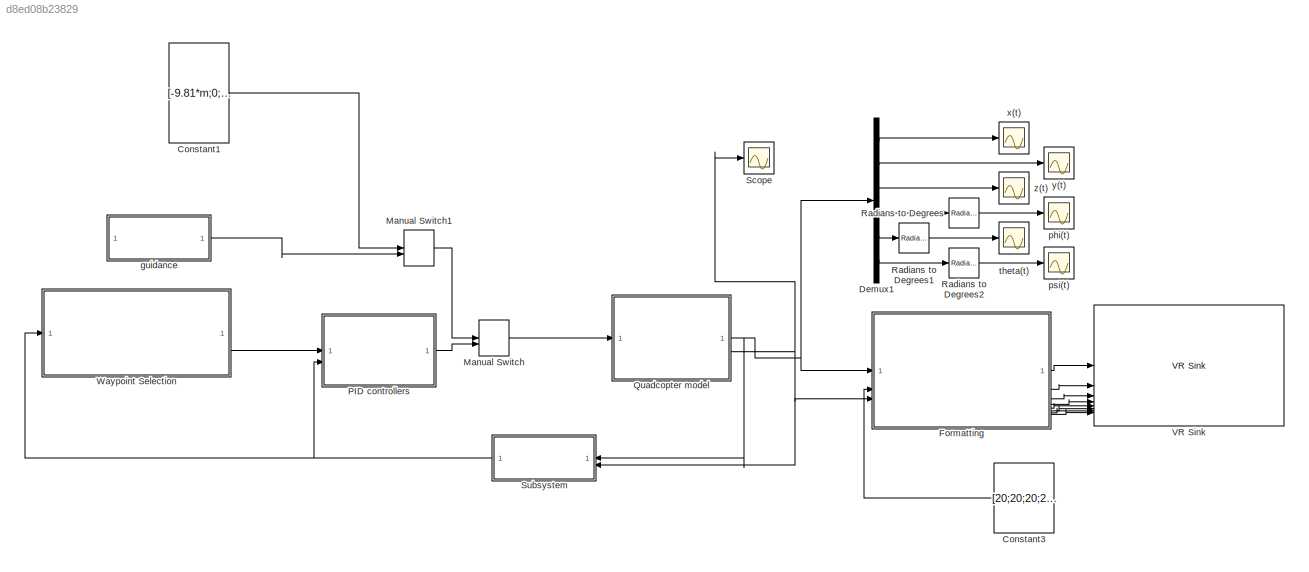
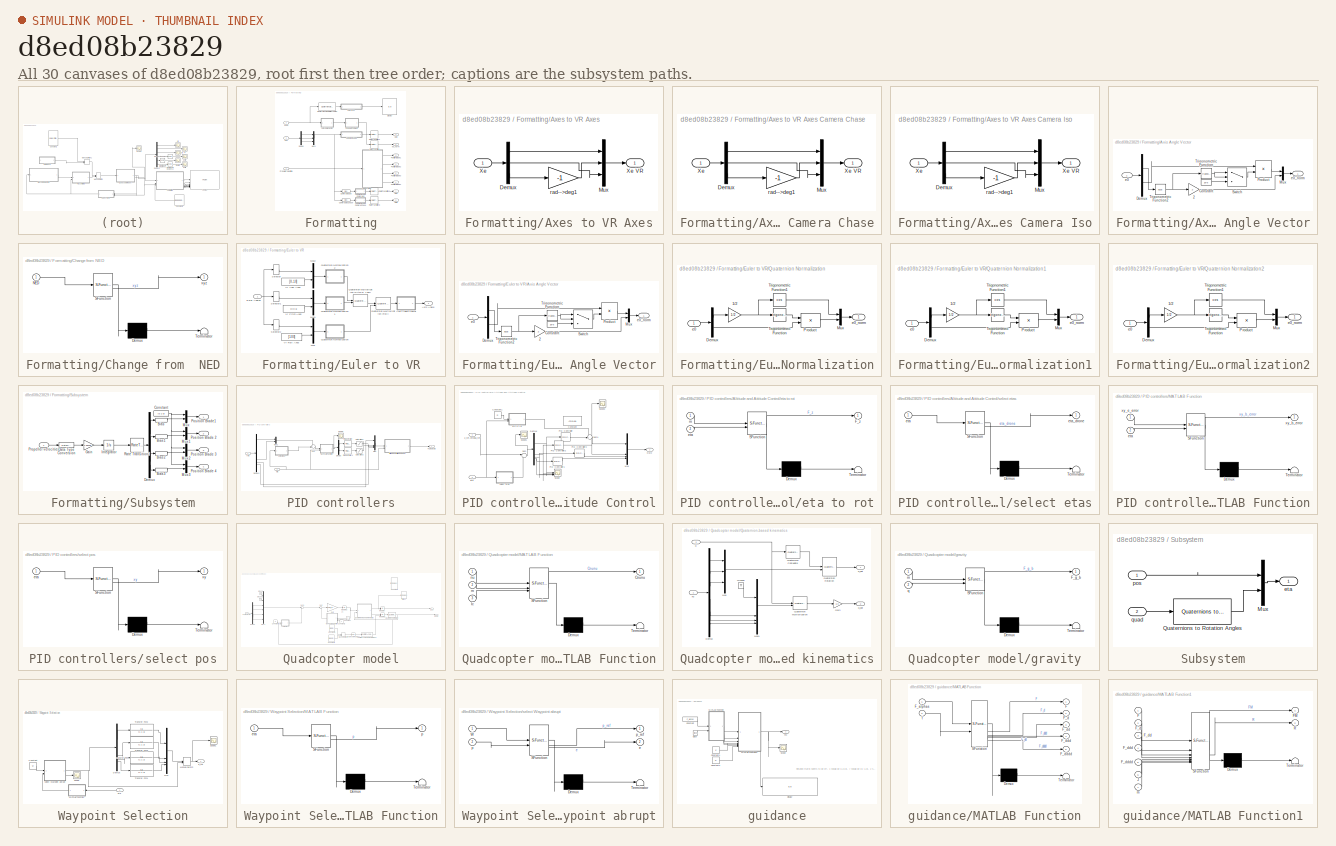
[diagram: thumbnail index - all 30 canvases of the model, root first then tree order]
MODEL slx_d8ed08b23829
KIND model
CONFIG AbsTol = auto
CONFIG EnableMultiTasking = on
CONFIG FixedStep = 0.005
CONFIG MaxStep = auto
CONFIG MinStep = auto
CONFIG RelTol = 1e-3
CONFIG SampleTimeConstraint = Unconstrained
CONFIG SolverName = ode3
CONFIG StartTime = 0
CONFIG StopTime = 10
BLOCK [Constant] Constant1
  Value = [-9.81*m;0;0;0]
  VectorParams1D = off
BLOCK [Constant] Constant3
  Value = [20;20;20;20]
  VectorParams1D = off
BLOCK [Demux] Demux1
  Commented = on
  Outputs = 6
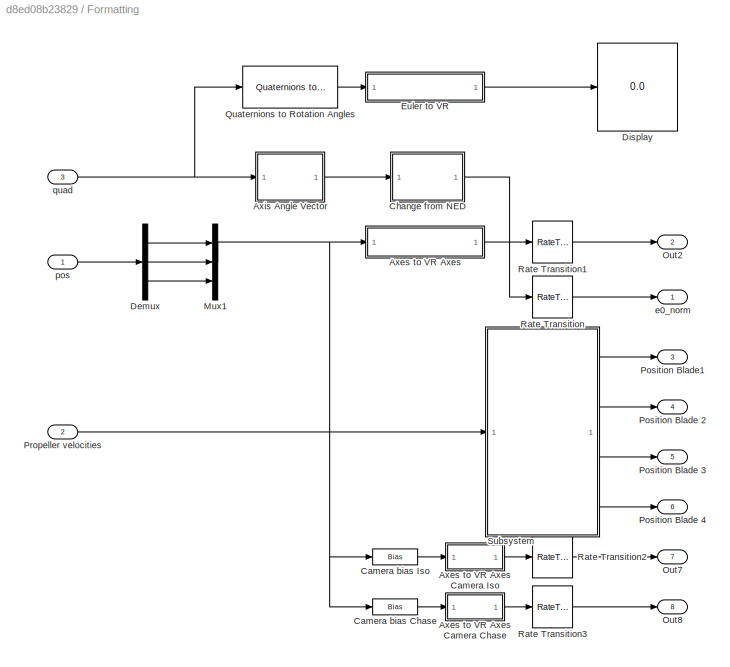
BLOCK [SubSystem] Formatting
BLOCK [SubSystem] Formatting/Axes to VR Axes
BLOCK [SubSystem] Formatting/Axes to VR Axes Camera Chase
BLOCK [Demux] Formatting/Axes to VR Axes Camera Chase/Demux
  DisplayOption = none
  Outputs = 3
BLOCK [Mux] Formatting/Axes to VR Axes Camera Chase/Mux
  DisplayOption = bar
  Inputs = 3
BLOCK [Inport] Formatting/Axes to VR Axes Camera Chase/Xe
BLOCK [Outport] Formatting/Axes to VR Axes Camera Chase/Xe VR
  VectorParamsAs1DForOutWhenUnconnected = off
BLOCK [Gain] Formatting/Axes to VR Axes Camera Chase/rad-->deg1
  Gain = -1
  NameLocation = top
  OutDataTypeStr = Inherit: Same as input
  ParamDataTypeStr = Inherit: Same as input
  SaturateOnIntegerOverflow = on
BLOCK [SubSystem] Formatting/Axes to VR Axes Camera Iso
BLOCK [Demux] Formatting/Axes to VR Axes Camera Iso/Demux
  DisplayOption = none
  Outputs = 3
BLOCK [Mux] Formatting/Axes to VR Axes Camera Iso/Mux
  DisplayOption = bar
  Inputs = 3
BLOCK [Inport] Formatting/Axes to VR Axes Camera Iso/Xe
BLOCK [Outport] Formatting/Axes to VR Axes Camera Iso/Xe VR
  VectorParamsAs1DForOutWhenUnconnected = off
BLOCK [Gain] Formatting/Axes to VR Axes Camera Iso/rad-->deg1
  Gain = -1
  NameLocation = top
  OutDataTypeStr = Inherit: Same as input
  ParamDataTypeStr = Inherit: Same as input
  SaturateOnIntegerOverflow = on
BLOCK [Demux] Formatting/Axes to VR Axes/Demux
  DisplayOption = none
  Outputs = 3
BLOCK [Mux] Formatting/Axes to VR Axes/Mux
  DisplayOption = bar
  Inputs = 3
BLOCK [Inport] Formatting/Axes to VR Axes/Xe
BLOCK [Outport] Formatting/Axes to VR Axes/Xe VR
  VectorParamsAs1DForOutWhenUnconnected = off
BLOCK [Gain] Formatting/Axes to VR Axes/rad-->deg1
  Gain = -1
  NameLocation = top
  OutDataTypeStr = Inherit: Same as input
  ParamDataTypeStr = Inherit: Same as input
  SaturateOnIntegerOverflow = on
BLOCK [SubSystem] Formatting/Axis Angle Vector
BLOCK [Gain] Formatting/Axis Angle Vector/2
  Gain = 2
  OutDataTypeStr = Inherit: Same as input
  ParamDataTypeStr = Inherit: Same as input
  SaturateOnIntegerOverflow = on
BLOCK [Constant] Formatting/Axis Angle Vector/Constant
  Value = 1e-6
BLOCK [Demux] Formatting/Axis Angle Vector/Demux
  DisplayOption = none
  Outputs = [1 3 ]
BLOCK [Mux] Formatting/Axis Angle Vector/Mux
  DisplayOption = bar
  Inputs = 2
BLOCK [Product] Formatting/Axis Angle Vector/Product
  InputSameDT = on
  Inputs = */
  OutDataTypeStr = Inherit: Same as first input
  SaturateOnIntegerOverflow = on
BLOCK [Switch] Formatting/Axis Angle Vector/Switch
  Criteria = u2 ~= 0
  InputSameDT = off
  SaturateOnIntegerOverflow = off
BLOCK [Trigonometry] Formatting/Axis Angle Vector/Trigonometric Function
BLOCK [Trigonometry] Formatting/Axis Angle Vector/Trigonometric Function2
  Operator = acos
BLOCK [Inport] Formatting/Axis Angle Vector/e0
BLOCK [Outport] Formatting/Axis Angle Vector/e0_norm
  VectorParamsAs1DForOutWhenUnconnected = off
BLOCK [Bias] Formatting/Camera bias Chase
  Bias = [-4 0 -.9558]'
  SaturateOnIntegerOverflow = off
BLOCK [Bias] Formatting/Camera bias Iso
  Bias = [0.9009 .99 -.6247]'
  SaturateOnIntegerOverflow = off
BLOCK [SubSystem] Formatting/Change from  NED
  ErrorFcn = Stateflow.Translate.translate
  PermitHierarchicalResolution = ExplicitOnly
  SFBlockType = MATLAB Function
  TreatAsAtomicUnit = on
BLOCK [Demux] Formatting/Change from  NED/ Demux 
  Outputs = 1
BLOCK [S-Function] Formatting/Change from  NED/ SFunction 
  EnableBusSupport = on
  FunctionName = sf_sfun
  PortCounts = [1 2]
  SFcnIsStateOwnerBlock = off
  SFunctionDeploymentMode = off
  Tag = Stateflow S-Function 1
BLOCK [Terminator] Formatting/Change from  NED/ Terminator 
BLOCK [Inport] Formatting/Change from  NED/NED
BLOCK [Outport] Formatting/Change from  NED/xyz
BLOCK [Demux] Formatting/Demux
  Outputs = 3
BLOCK [Display] Formatting/Display
  Decimation = 1
BLOCK [SubSystem] Formatting/Euler to VR
BLOCK [Outport] Formatting/Euler to VR/Axis Angle
  VectorParamsAs1DForOutWhenUnconnected = off
BLOCK [SubSystem] Formatting/Euler to VR/Axis Angle Vector
BLOCK [Gain] Formatting/Euler to VR/Axis Angle Vector/2
  Gain = 2
  OutDataTypeStr = Inherit: Same as input
  ParamDataTypeStr = Inherit: Same as input
  SaturateOnIntegerOverflow = on
BLOCK [Constant] Formatting/Euler to VR/Axis Angle Vector/Constant
  Value = 1e-6
BLOCK [Demux] Formatting/Euler to VR/Axis Angle Vector/Demux
  DisplayOption = none
  Outputs = [1 3 ]
BLOCK [Mux] Formatting/Euler to VR/Axis Angle Vector/Mux
  DisplayOption = bar
  Inputs = 2
BLOCK [Product] Formatting/Euler to VR/Axis Angle Vector/Product
  InputSameDT = on
  Inputs = */
  OutDataTypeStr = Inherit: Same as first input
  SaturateOnIntegerOverflow = on
BLOCK [Switch] Formatting/Euler to VR/Axis Angle Vector/Switch
  Criteria = u2 ~= 0
  InputSameDT = off
  SaturateOnIntegerOverflow = off
BLOCK [Trigonometry] Formatting/Euler to VR/Axis Angle Vector/Trigonometric Function
BLOCK [Trigonometry] Formatting/Euler to VR/Axis Angle Vector/Trigonometric Function2
  Operator = acos
BLOCK [Inport] Formatting/Euler to VR/Axis Angle Vector/e0
BLOCK [Outport] Formatting/Euler to VR/Axis Angle Vector/e0_norm
  VectorParamsAs1DForOutWhenUnconnected = off
BLOCK [Inport] Formatting/Euler to VR/Euler Angles
BLOCK [Mux] Formatting/Euler to VR/Mux
  DisplayOption = bar
  Inputs = 2
BLOCK [Mux] Formatting/Euler to VR/Mux1
  DisplayOption = bar
  Inputs = 2
BLOCK [Mux] Formatting/Euler to VR/Mux2
  DisplayOption = bar
  Inputs = 2
BLOCK [Reference] Formatting/Euler to VR/Quaternion Multiplication (Pitch & Yaw)  REF=aerolibutil/Quaternion
Multiplication
  SourceBlock = aerolibutil/Quaternion\nMultiplication
  SourceType = Quaternion Multiplication
BLOCK [Reference] Formatting/Euler to VR/Quaternion Multiplication (Roll)  REF=aerolibutil/Quaternion
Multiplication
  SourceBlock = aerolibutil/Quaternion\nMultiplication
  SourceType = Quaternion Multiplication
BLOCK [SubSystem] Formatting/Euler to VR/Quaternion Normalization
BLOCK [Gain] Formatting/Euler to VR/Quaternion Normalization/1//2
  Gain = 1/2
  OutDataTypeStr = Inherit: Same as input
  ParamDataTypeStr = Inherit: Same as input
  SaturateOnIntegerOverflow = on
BLOCK [Demux] Formatting/Euler to VR/Quaternion Normalization/Demux
  DisplayOption = none
  Outputs = [1 3]
BLOCK [Mux] Formatting/Euler to VR/Quaternion Normalization/Mux
  DisplayOption = bar
  Inputs = 2
BLOCK [Product] Formatting/Euler to VR/Quaternion Normalization/Product
  InputSameDT = on
  OutDataTypeStr = Inherit: Same as first input
  SaturateOnIntegerOverflow = on
BLOCK [Trigonometry] Formatting/Euler to VR/Quaternion Normalization/Trigonometric Function
BLOCK [Trigonometry] Formatting/Euler to VR/Quaternion Normalization/Trigonometric Function1
  Operator = cos
BLOCK [Inport] Formatting/Euler to VR/Quaternion Normalization/e0
BLOCK [Outport] Formatting/Euler to VR/Quaternion Normalization/e0_norm
  VectorParamsAs1DForOutWhenUnconnected = off
BLOCK [SubSystem] Formatting/Euler to VR/Quaternion Normalization1
BLOCK [Gain] Formatting/Euler to VR/Quaternion Normalization1/1//2
  Gain = 1/2
  OutDataTypeStr = Inherit: Same as input
  ParamDataTypeStr = Inherit: Same as input
  SaturateOnIntegerOverflow = on
BLOCK [Demux] Formatting/Euler to VR/Quaternion Normalization1/Demux
  DisplayOption = none
  Outputs = [1 3]
BLOCK [Mux] Formatting/Euler to VR/Quaternion Normalization1/Mux
  DisplayOption = bar
  Inputs = 2
BLOCK [Product] Formatting/Euler to VR/Quaternion Normalization1/Product
  InputSameDT = on
  OutDataTypeStr = Inherit: Same as first input
  SaturateOnIntegerOverflow = on
BLOCK [Trigonometry] Formatting/Euler to VR/Quaternion Normalization1/Trigonometric Function
BLOCK [Trigonometry] Formatting/Euler to VR/Quaternion Normalization1/Trigonometric Function1
  Operator = cos
BLOCK [Inport] Formatting/Euler to VR/Quaternion Normalization1/e0
BLOCK [Outport] Formatting/Euler to VR/Quaternion Normalization1/e0_norm
  VectorParamsAs1DForOutWhenUnconnected = off
BLOCK [SubSystem] Formatting/Euler to VR/Quaternion Normalization2
BLOCK [Gain] Formatting/Euler to VR/Quaternion Normalization2/1//2
  Gain = 1/2
  OutDataTypeStr = Inherit: Same as input
  ParamDataTypeStr = Inherit: Same as input
  SaturateOnIntegerOverflow = on
BLOCK [Demux] Formatting/Euler to VR/Quaternion Normalization2/Demux
  DisplayOption = none
  Outputs = [1 3]
BLOCK [Mux] Formatting/Euler to VR/Quaternion Normalization2/Mux
  DisplayOption = bar
  Inputs = 2
BLOCK [Product] Formatting/Euler to VR/Quaternion Normalization2/Product
  InputSameDT = on
  OutDataTypeStr = Inherit: Same as first input
  SaturateOnIntegerOverflow = on
BLOCK [Trigonometry] Formatting/Euler to VR/Quaternion Normalization2/Trigonometric Function
BLOCK [Trigonometry] Formatting/Euler to VR/Quaternion Normalization2/Trigonometric Function1
  Operator = cos
BLOCK [Inport] Formatting/Euler to VR/Quaternion Normalization2/e0
BLOCK [Outport] Formatting/Euler to VR/Quaternion Normalization2/e0_norm
  VectorParamsAs1DForOutWhenUnconnected = off
BLOCK [Selector] Formatting/Euler to VR/Selector
  IndexOptions = Index vector (dialog)
  Indices = [3]
  InputPortWidth = 3
  OutputSizes = 1
BLOCK [Selector] Formatting/Euler to VR/Selector1
  IndexOptions = Index vector (dialog)
  Indices = [2]
  InputPortWidth = 3
  OutputSizes = 1
BLOCK [Selector] Formatting/Euler to VR/Selector2
  IndexOptions = Index vector (dialog)
  Indices = [1]
  InputPortWidth = 3
  OutputSizes = 1
BLOCK [Constant] Formatting/Euler to VR/Vr Pitch Axes
  NameLocation = top
  Value = [0 0 1]
BLOCK [Constant] Formatting/Euler to VR/Vr Roll Axes
  NameLocation = top
  Value = [1 0 0]
BLOCK [Constant] Formatting/Euler to VR/Vr Yaw Axes
  Value = [0 -1 0]
BLOCK [Mux] Formatting/Mux1
  DisplayOption = bar
  Inputs = 3
BLOCK [Outport] Formatting/Out2
  Port = 2
BLOCK [Outport] Formatting/Out7
  Port = 7
BLOCK [Outport] Formatting/Out8
  Port = 8
BLOCK [Outport] Formatting/Position Blade 2
  Port = 4
BLOCK [Outport] Formatting/Position Blade 3
  Port = 5
BLOCK [Outport] Formatting/Position Blade 4
  Port = 6
BLOCK [Outport] Formatting/Position Blade1
  Port = 3
BLOCK [Inport] Formatting/Propeller velocities
  Port = 2
BLOCK [Reference] Formatting/Quaternions to Rotation Angles  REF=sharedtransform/Quaternions to Rotation Angles
  AttributesFormatString = Rotation Order: %<rotationOrder>
  LibrarySourceBlock = aerolibtransform2/Quaternions to Rotation Angles
  SourceBlock = sharedtransform/Quaternions to Rotation Angles
  SourceType = Quat2Ang
BLOCK [RateTransition] Formatting/Rate Transition
BLOCK [RateTransition] Formatting/Rate Transition1
BLOCK [RateTransition] Formatting/Rate Transition2
BLOCK [RateTransition] Formatting/Rate Transition3
BLOCK [SubSystem] Formatting/Subsystem
BLOCK [Bias] Formatting/Subsystem/Bias
  Bias = .1
  SaturateOnIntegerOverflow = off
BLOCK [Bias] Formatting/Subsystem/Bias1
  Bias = -.3
  SaturateOnIntegerOverflow = off
BLOCK [Bias] Formatting/Subsystem/Bias2
  Bias = .5
  SaturateOnIntegerOverflow = off
BLOCK [Bias] Formatting/Subsystem/Bias3
  Bias = .7
  SaturateOnIntegerOverflow = off
BLOCK [Constant] Formatting/Subsystem/Constant
  Value = [0 1 0]
BLOCK [DataTypeConversion] Formatting/Subsystem/Data Type Conversion
  OutDataTypeStr = double
  RndMeth = Floor
  SaturateOnIntegerOverflow = off
BLOCK [Demux] Formatting/Subsystem/Demux
BLOCK [Gain] Formatting/Subsystem/Gain
  Gain = 1.38408
BLOCK [Integrator] Formatting/Subsystem/Integrator
  InitialCondition = [.1 ; .2 ;-.3 ;-.4]
  WrapState = on
  WrappedStateLowerValue = -2*pi
  WrappedStateUpperValue = 2*pi
BLOCK [Mux] Formatting/Subsystem/Mux
  DisplayOption = bar
  Inputs = 2
BLOCK [Mux] Formatting/Subsystem/Mux1
  DisplayOption = bar
  Inputs = 2
BLOCK [Mux] Formatting/Subsystem/Mux2
  DisplayOption = bar
  Inputs = 2
BLOCK [Mux] Formatting/Subsystem/Mux3
  DisplayOption = bar
  Inputs = 2
BLOCK [Outport] Formatting/Subsystem/Position Blade 2
  Port = 2
  VectorParamsAs1DForOutWhenUnconnected = off
BLOCK [Outport] Formatting/Subsystem/Position Blade 3
  Port = 3
  VectorParamsAs1DForOutWhenUnconnected = off
BLOCK [Outport] Formatting/Subsystem/Position Blade 4
  Port = 4
  VectorParamsAs1DForOutWhenUnconnected = off
BLOCK [Outport] Formatting/Subsystem/Position Blade1
  VectorParamsAs1DForOutWhenUnconnected = off
BLOCK [Inport] Formatting/Subsystem/Propeller velocities
BLOCK [RateTransition] Formatting/Subsystem/Rate Transition2
BLOCK [Outport] Formatting/e0_norm
BLOCK [Inport] Formatting/pos
BLOCK [Inport] Formatting/quad
  Port = 3
BLOCK [ManualSwitch] Manual Switch
BLOCK [ManualSwitch] Manual Switch1
  CurrentSetting = 0
BLOCK [SubSystem] PID controllers
BLOCK [SubSystem] PID controllers/Altitude and Attitude Control
BLOCK [Constant] PID controllers/Altitude and Attitude Control/Constant
  Value = -m*9.81
BLOCK [Constant] PID controllers/Altitude and Attitude Control/Constant1
  Value = m
BLOCK [Demux] PID controllers/Altitude and Attitude Control/Demux
BLOCK [Mux] PID controllers/Altitude and Attitude Control/Mux
  DisplayOption = bar
BLOCK [Outport] PID controllers/Altitude and Attitude Control/Out2
BLOCK [Reference] PID controllers/Altitude and Attitude Control/PID Controller  REF=slpidlib/PID Controller
  LibrarySourceBlock = simulink/Continuous/PID Controller
  SourceBlock = slpidlib/PID Controller
  SourceType = PID 1dof
BLOCK [Reference] PID controllers/Altitude and Attitude Control/PID Controller1  REF=slpidlib/PID Controller
  LibrarySourceBlock = simulink/Continuous/PID Controller
  SourceBlock = slpidlib/PID Controller
  SourceType = PID 1dof
BLOCK [Reference] PID controllers/Altitude and Attitude Control/PID Controller2  REF=slpidlib/PID Controller
  LibrarySourceBlock = simulink/Continuous/PID Controller
  SourceBlock = slpidlib/PID Controller
  SourceType = PID 1dof
BLOCK [Reference] PID controllers/Altitude and Attitude Control/PID Controller3  REF=slpidlib/PID Controller
  LibrarySourceBlock = simulink/Continuous/PID Controller
  SourceBlock = slpidlib/PID Controller
  SourceType = PID 1dof
BLOCK [Scope] PID controllers/Altitude and Attitude Control/Scope
  Floating = off
  NumInputPorts = 4
  ScopeSpecificationString = Simulink.scopes.TimeScopeBlockCfg('CurrentConfiguration', extmgr.ConfigurationSet(extmgr.Configuration('Core','General UI',true),extmgr.Configuration('Core','Source UI',true),extmgr.Configuration('Sources','WiredSimulink',true,'DataLoggingVariableName','ScopeData1'),extmgr.Configuration('Visuals','Time Domain',true,'SerializedDisplays',{struct('MinYLimReal','-0.00819','MaxYLimReal','0.0203','YLabe...<+1560ch>
BLOCK [Scope] PID controllers/Altitude and Attitude Control/Scope1
  Floating = off
  NumInputPorts = 1
  ScopeSpecificationString = Simulink.scopes.TimeScopeBlockCfg('CurrentConfiguration', extmgr.ConfigurationSet(extmgr.Configuration('Core','General UI',true),extmgr.Configuration('Core','Source UI',true),extmgr.Configuration('Sources','WiredSimulink',true,'DataLoggingVariableName','ScopeData2'),extmgr.Configuration('Visuals','Time Domain',true,'SerializedDisplays',{struct('MinYLimReal','-0.98175','MaxYLimReal','0.98175','YLab...<+1558ch>
BLOCK [Scope] PID controllers/Altitude and Attitude Control/Scope2
  Floating = off
  NumInputPorts = 1
  ScopeSpecificationString = Simulink.scopes.TimeScopeBlockCfg('CurrentConfiguration', extmgr.ConfigurationSet(extmgr.Configuration('Core','General UI',true),extmgr.Configuration('Core','Source UI',true),extmgr.Configuration('Sources','WiredSimulink',true,'DataLoggingVariableName','ScopeData1'),extmgr.Configuration('Visuals','Time Domain',true,'SerializedDisplays',{struct('MinYLimReal','-1126.94787','MaxYLimReal','976.61764',...<+1539ch>
BLOCK [Sum] PID controllers/Altitude and Attitude Control/Sum
  Inputs = |+-
BLOCK [Sum] PID controllers/Altitude and Attitude Control/Sum1
  Inputs = -+|
BLOCK [Inport] PID controllers/Altitude and Attitude Control/eta
  Port = 2
BLOCK [SubSystem] PID controllers/Altitude and Attitude Control/eta to rot
  ErrorFcn = Stateflow.Translate.translate
  PermitHierarchicalResolution = ExplicitOnly
  SFBlockType = MATLAB Function
  TreatAsAtomicUnit = on
BLOCK [Demux] PID controllers/Altitude and Attitude Control/eta to rot/ Demux 
  Outputs = 1
BLOCK [S-Function] PID controllers/Altitude and Attitude Control/eta to rot/ SFunction 
  EnableBusSupport = on
  FunctionName = sf_sfun
  PortCounts = [2 2]
  SFcnIsStateOwnerBlock = off
  SFunctionDeploymentMode = off
  Tag = Stateflow S-Function 5
BLOCK [Terminator] PID controllers/Altitude and Attitude Control/eta to rot/ Terminator 
BLOCK [Outport] PID controllers/Altitude and Attitude Control/eta to rot/F_z
BLOCK [Inport] PID controllers/Altitude and Attitude Control/eta to rot/eta
  Port = 2
BLOCK [Inport] PID controllers/Altitude and Attitude Control/eta to rot/m
BLOCK [SubSystem] PID controllers/Altitude and Attitude Control/select etas
  ErrorFcn = Stateflow.Translate.translate
  PermitHierarchicalResolution = ExplicitOnly
  SFBlockType = MATLAB Function
  TreatAsAtomicUnit = on
BLOCK [Demux] PID controllers/Altitude and Attitude Control/select etas/ Demux 
  Outputs = 1
BLOCK [S-Function] PID controllers/Altitude and Attitude Control/select etas/ SFunction 
  EnableBusSupport = on
  FunctionName = sf_sfun
  PortCounts = [1 2]
  SFcnIsStateOwnerBlock = off
  SFunctionDeploymentMode = off
  Tag = Stateflow S-Function 3
BLOCK [Terminator] PID controllers/Altitude and Attitude Control/select etas/ Terminator 
BLOCK [Inport] PID controllers/Altitude and Attitude Control/select etas/eta
BLOCK [Outport] PID controllers/Altitude and Attitude Control/select etas/eta_drone
BLOCK [Inport] PID controllers/Altitude and Attitude Control/z_ref,omega_ref
BLOCK [Demux] PID controllers/Demux
  Outputs = 2
BLOCK [Demux] PID controllers/Demux1
BLOCK [Outport] PID controllers/Fz,mx,my,mz
BLOCK [SubSystem] PID controllers/MATLAB Function
  ErrorFcn = Stateflow.Translate.translate
  PermitHierarchicalResolution = ExplicitOnly
  SFBlockType = MATLAB Function
  TreatAsAtomicUnit = on
BLOCK [Demux] PID controllers/MATLAB Function/ Demux 
  Outputs = 1
BLOCK [S-Function] PID controllers/MATLAB Function/ SFunction 
  EnableBusSupport = on
  FunctionName = sf_sfun
  PortCounts = [2 2]
  SFcnIsStateOwnerBlock = off
  SFunctionDeploymentMode = off
  Tag = Stateflow S-Function 7
BLOCK [Terminator] PID controllers/MATLAB Function/ Terminator 
BLOCK [Inport] PID controllers/MATLAB Function/eta
  Port = 2
BLOCK [Outport] PID controllers/MATLAB Function/xy_b_error
BLOCK [Inport] PID controllers/MATLAB Function/xy_e_error
BLOCK [Mux] PID controllers/Mux
  DisplayOption = bar
BLOCK [Mux] PID controllers/Mux1
  DisplayOption = bar
  Inputs = 2
BLOCK [Reference] PID controllers/PID Controller  REF=slpidlib/PID Controller
  LibrarySourceBlock = simulink/Continuous/PID Controller
  SourceBlock = slpidlib/PID Controller
  SourceType = PID 1dof
BLOCK [Reference] PID controllers/PID Controller1  REF=slpidlib/PID Controller
  LibrarySourceBlock = simulink/Continuous/PID Controller
  SourceBlock = slpidlib/PID Controller
  SourceType = PID 1dof
BLOCK [Saturate] PID controllers/Saturation1
  LowerLimit = -45/180*pi
  UpperLimit = 45/180*pi
BLOCK [Saturate] PID controllers/Saturation2
  LowerLimit = -45/180*pi
  UpperLimit = 45/180*pi
BLOCK [Scope] PID controllers/Scope
  Floating = off
  NumInputPorts = 1
  ScopeSpecificationString = Simulink.scopes.TimeScopeBlockCfg('CurrentConfiguration', extmgr.ConfigurationSet(extmgr.Configuration('Core','General UI',true),extmgr.Configuration('Core','Source UI',true),extmgr.Configuration('Sources','WiredSimulink',true,'DataLoggingVariableName','ScopeData1'),extmgr.Configuration('Visuals','Time Domain',true,'SerializedDisplays',{struct('MinYLimReal','-16.00098','MaxYLimReal','5.17223','YLa...<+1562ch>
BLOCK [Sum] PID controllers/Sum
  Inputs = -+|
BLOCK [Inport] PID controllers/eta
  Port = 2
BLOCK [Inport] PID controllers/refs
BLOCK [SubSystem] PID controllers/select pos
  ErrorFcn = Stateflow.Translate.translate
  PermitHierarchicalResolution = ExplicitOnly
  SFBlockType = MATLAB Function
  TreatAsAtomicUnit = on
BLOCK [Demux] PID controllers/select pos/ Demux 
  Outputs = 1
BLOCK [S-Function] PID controllers/select pos/ SFunction 
  EnableBusSupport = on
  FunctionName = sf_sfun
  PortCounts = [1 2]
  SFcnIsStateOwnerBlock = off
  SFunctionDeploymentMode = off
  Tag = Stateflow S-Function 6
BLOCK [Terminator] PID controllers/select pos/ Terminator 
BLOCK [Inport] PID controllers/select pos/eta
BLOCK [Outport] PID controllers/select pos/xy
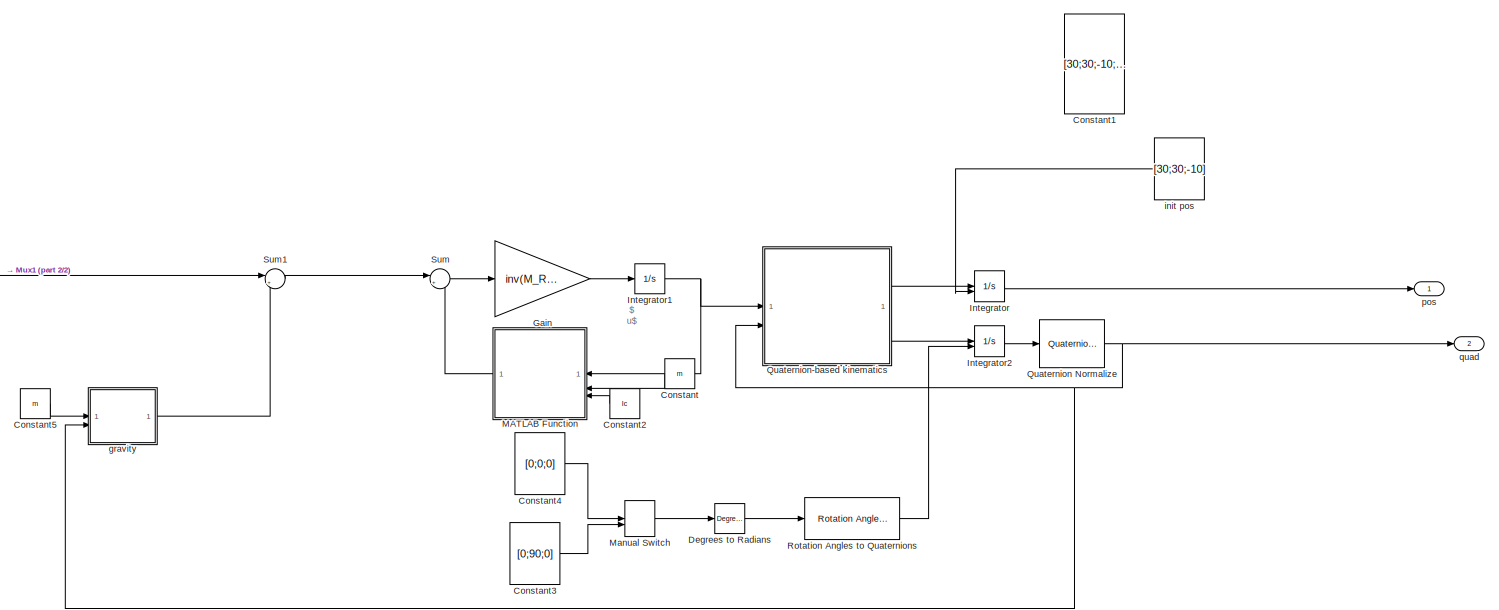
[diagram: Quadcopter model - part 1/2, most of the canvas]
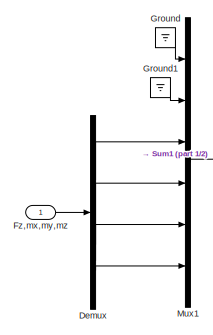
[diagram: Quadcopter model - part 2/2, middle left region]
BLOCK [SubSystem] Quadcopter model
BLOCK [Constant] Quadcopter model/Constant
  Value = m
BLOCK [Constant] Quadcopter model/Constant1
  Value = [30;30;-10;0;0;0]
  VectorParams1D = off
BLOCK [Constant] Quadcopter model/Constant2
  Value = Ic
  VectorParams1D = off
BLOCK [Constant] Quadcopter model/Constant3
  Value = [0;90;0]
  VectorParams1D = off
BLOCK [Constant] Quadcopter model/Constant4
  Value = [0;0;0]
  VectorParams1D = off
BLOCK [Constant] Quadcopter model/Constant5
  Value = m
BLOCK [Reference] Quadcopter model/Degrees to Radians  REF=simulink_extras/Transformations/Degrees to
Radians
  SourceBlock = simulink_extras/Transformations/Degrees to\nRadians
  SourceType = DegreesToRadians
BLOCK [Demux] Quadcopter model/Demux
BLOCK [Inport] Quadcopter model/Fz,mx,my,mz
BLOCK [Gain] Quadcopter model/Gain
  Gain = inv(M_RB)
  Multiplication = Matrix(K*u) (u vector)
BLOCK [Ground] Quadcopter model/Ground
BLOCK [Ground] Quadcopter model/Ground1
BLOCK [Integrator] Quadcopter model/Integrator
  InitialCondition = [0;0;-10]
  InitialConditionSource = external
BLOCK [Integrator] Quadcopter model/Integrator1
  InitialCondition = [0;0;0;0;0;0]
BLOCK [Integrator] Quadcopter model/Integrator2
  InitialCondition = [0;0;-10;0;pi/2;0]
  InitialConditionSource = external
BLOCK [SubSystem] Quadcopter model/MATLAB Function
  ErrorFcn = Stateflow.Translate.translate
  PermitHierarchicalResolution = ExplicitOnly
  SFBlockType = MATLAB Function
  TreatAsAtomicUnit = on
BLOCK [Demux] Quadcopter model/MATLAB Function/ Demux 
  Outputs = 1
BLOCK [S-Function] Quadcopter model/MATLAB Function/ SFunction 
  EnableBusSupport = on
  FunctionName = sf_sfun
  PortCounts = [3 2]
  SFcnIsStateOwnerBlock = off
  SFunctionDeploymentMode = off
  Tag = Stateflow S-Function 2
BLOCK [Terminator] Quadcopter model/MATLAB Function/ Terminator 
BLOCK [Outport] Quadcopter model/MATLAB Function/Cnunu
BLOCK [Inport] Quadcopter model/MATLAB Function/Ic
  Port = 3
BLOCK [Inport] Quadcopter model/MATLAB Function/m
  Port = 2
BLOCK [Inport] Quadcopter model/MATLAB Function/nu
BLOCK [ManualSwitch] Quadcopter model/Manual Switch
BLOCK [Mux] Quadcopter model/Mux1
  DisplayOption = bar
  Inputs = 6
BLOCK [Reference] Quadcopter model/Quaternion Normalize  REF=sharedutil/Quaternion
Normalize
  LibrarySourceBlock = aerolibutil/Quaternion\nNormalize
  SourceBlock = sharedutil/Quaternion\nNormalize
  SourceType = Quaternion Normalize
BLOCK [SubSystem] Quadcopter model/Quaternion-based kinematics
  NameLocation = top
BLOCK [Demux] Quadcopter model/Quaternion-based kinematics/Demux
  Outputs = 6
BLOCK [Gain] Quadcopter model/Quaternion-based kinematics/Gain
  Gain = 1/2
BLOCK [Ground] Quadcopter model/Quaternion-based kinematics/Ground
BLOCK [Mux] Quadcopter model/Quaternion-based kinematics/Mux
  DisplayOption = bar
  Inputs = 3
BLOCK [Mux] Quadcopter model/Quaternion-based kinematics/Mux1
  DisplayOption = bar
BLOCK [Reference] Quadcopter model/Quaternion-based kinematics/Quaternion Conjugate  REF=aerolibutil/Quaternion
Conjugate
  SourceBlock = aerolibutil/Quaternion\nConjugate
  SourceType = Quaternion Conjugate
BLOCK [Reference] Quadcopter model/Quaternion-based kinematics/Quaternion Multiplication  REF=aerolibutil/Quaternion
Multiplication
  SourceBlock = aerolibutil/Quaternion\nMultiplication
  SourceType = Quaternion Multiplication
BLOCK [Reference] Quadcopter model/Quaternion-based kinematics/Quaternion Rotation  REF=aerolibutil/Quaternion
Rotation
  SourceBlock = aerolibutil/Quaternion\nRotation
  SourceType = Quaternion Rotation
BLOCK [Inport] Quadcopter model/Quaternion-based kinematics/nu
BLOCK [Outport] Quadcopter model/Quaternion-based kinematics/p_dot
BLOCK [Inport] Quadcopter model/Quaternion-based kinematics/q
  Port = 2
BLOCK [Outport] Quadcopter model/Quaternion-based kinematics/q_dot
  Port = 2
BLOCK [Reference] Quadcopter model/Rotation Angles to Quaternions  REF=sharedtransform/Rotation Angles to Quaternions
  AttributesFormatString = Rotation Order: %<rotationOrder>
  LibrarySourceBlock = aerolibtransform2/Rotation Angles to Quaternions
  SourceBlock = sharedtransform/Rotation Angles to Quaternions
  SourceType = Ang2Quat
BLOCK [Sum] Quadcopter model/Sum
  Inputs = |+-
BLOCK [Sum] Quadcopter model/Sum1
  Inputs = |++
BLOCK [SubSystem] Quadcopter model/gravity
  ErrorFcn = Stateflow.Translate.translate
  PermitHierarchicalResolution = ExplicitOnly
  SFBlockType = MATLAB Function
  TreatAsAtomicUnit = on
BLOCK [Demux] Quadcopter model/gravity/ Demux 
  Outputs = 1
BLOCK [S-Function] Quadcopter model/gravity/ SFunction 
  EnableBusSupport = on
  FunctionName = sf_sfun
  PortCounts = [2 2]
  SFcnIsStateOwnerBlock = off
  SFunctionDeploymentMode = off
  Tag = Stateflow S-Function 4
BLOCK [Terminator] Quadcopter model/gravity/ Terminator 
BLOCK [Outport] Quadcopter model/gravity/F_g_b
BLOCK [Inport] Quadcopter model/gravity/m
BLOCK [Inport] Quadcopter model/gravity/q
  Port = 2
BLOCK [Constant] Quadcopter model/init pos
  Value = [30;30;-10]
  VectorParams1D = off
BLOCK [Outport] Quadcopter model/pos
BLOCK [Outport] Quadcopter model/quad
  Port = 2
BLOCK [Reference] Radians to Degrees  REF=simulink_extras/Transformations/Radians
to Degrees
  Commented = on
  SourceBlock = simulink_extras/Transformations/Radians\nto Degrees
  SourceType = RadiansToDegrees
BLOCK [Reference] Radians to Degrees1  REF=simulink_extras/Transformations/Radians
to Degrees
  Commented = on
  SourceBlock = simulink_extras/Transformations/Radians\nto Degrees
  SourceType = RadiansToDegrees
BLOCK [Reference] Radians to Degrees2  REF=simulink_extras/Transformations/Radians
to Degrees
  Commented = on
  SourceBlock = simulink_extras/Transformations/Radians\nto Degrees
  SourceType = RadiansToDegrees
BLOCK [Scope] Scope
  Floating = off
  NumInputPorts = 1
  ScopeSpecificationString = Simulink.scopes.TimeScopeBlockCfg('CurrentConfiguration', extmgr.ConfigurationSet(extmgr.Configuration('Core','General UI',true),extmgr.Configuration('Core','Source UI',true),extmgr.Configuration('Sources','WiredSimulink',true,'DataLoggingVariableName','ScopeData2'),extmgr.Configuration('Visuals','Time Domain',true,'SerializedDisplays',{struct('MinYLimReal','-0.12908','MaxYLimReal','1.12545','YLab...<+1733ch>
BLOCK [SubSystem] Subsystem
BLOCK [Mux] Subsystem/Mux
  DisplayOption = bar
  Inputs = 2
BLOCK [Reference] Subsystem/Quaternions to Rotation Angles  REF=sharedtransform/Quaternions to Rotation Angles
  AttributesFormatString = Rotation Order: %<rotationOrder>
  LibrarySourceBlock = aerolibtransform2/Quaternions to Rotation Angles
  SourceBlock = sharedtransform/Quaternions to Rotation Angles
  SourceType = Quat2Ang
BLOCK [Outport] Subsystem/eta
BLOCK [Inport] Subsystem/pos
BLOCK [Inport] Subsystem/quad
  Port = 2
BLOCK [Reference] VR Sink  REF=vrlib/VR Sink
  InstantiateOnLoad = on
  SourceBlock = vrlib/VR Sink
  SourceType = Virtual Reality Sink
BLOCK [SubSystem] Waypoint Selection
BLOCK [Constant] Waypoint Selection/Constant
  Value = W
BLOCK [Demux] Waypoint Selection/Demux
BLOCK [SubSystem] Waypoint Selection/MATLAB Function
  ErrorFcn = Stateflow.Translate.translate
  PermitHierarchicalResolution = ExplicitOnly
  SFBlockType = MATLAB Function
  TreatAsAtomicUnit = on
BLOCK [Demux] Waypoint Selection/MATLAB Function/ Demux 
  Outputs = 1
BLOCK [S-Function] Waypoint Selection/MATLAB Function/ SFunction 
  EnableBusSupport = on
  FunctionName = sf_sfun
  PortCounts = [1 2]
  SFcnIsStateOwnerBlock = off
  SFunctionDeploymentMode = off
  Tag = Stateflow S-Function 8
BLOCK [Terminator] Waypoint Selection/MATLAB Function/ Terminator 
BLOCK [Inport] Waypoint Selection/MATLAB Function/eta
BLOCK [Outport] Waypoint Selection/MATLAB Function/p
BLOCK [ManualSwitch] Waypoint Selection/Manual Switch
BLOCK [Mux] Waypoint Selection/Mux
  DisplayOption = bar
BLOCK [Scope] Waypoint Selection/Scope
  Floating = off
  NumInputPorts = 1
  ScopeSpecificationString = Simulink.scopes.TimeScopeBlockCfg('CurrentConfiguration', extmgr.ConfigurationSet(extmgr.Configuration('Core','General UI',true),extmgr.Configuration('Core','Source UI',true),extmgr.Configuration('Sources','WiredSimulink',true,'DataLoggingVariableName','ScopeData1'),extmgr.Configuration('Visuals','Time Domain',true,'SerializedDisplays',{struct('MinYLimReal','-0.36165','MaxYLimReal','10.74773','YLa...<+1546ch>
BLOCK [Scope] Waypoint Selection/Scope1
  Floating = off
  NumInputPorts = 1
  ScopeSpecificationString = Simulink.scopes.TimeScopeBlockCfg('CurrentConfiguration', extmgr.ConfigurationSet(extmgr.Configuration('Core','General UI',true),extmgr.Configuration('Core','Source UI',true),extmgr.Configuration('Sources','WiredSimulink',true,'DataLoggingVariableName','ScopeData2'),extmgr.Configuration('Visuals','Time Domain',true,'SerializedDisplays',{struct('MinYLimReal','-7.59025','MaxYLimReal','8.64324','YLab...<+1612ch>
BLOCK [TransferFcn] Waypoint Selection/Transfer Fcn
  Denominator = [1 1 1]
BLOCK [TransferFcn] Waypoint Selection/Transfer Fcn1
  Denominator = [1 1 1]
BLOCK [TransferFcn] Waypoint Selection/Transfer Fcn2
  Denominator = [1 1 1]
BLOCK [TransferFcn] Waypoint Selection/Transfer Fcn3
  Denominator = [1 1 1]
BLOCK [Inport] Waypoint Selection/eta
BLOCK [Outport] Waypoint Selection/p_ref
BLOCK [SubSystem] Waypoint Selection/select Waypoint abrupt
  ErrorFcn = Stateflow.Translate.translate
  PermitHierarchicalResolution = ExplicitOnly
  SFBlockType = MATLAB Function
  TreatAsAtomicUnit = on
BLOCK [Demux] Waypoint Selection/select Waypoint abrupt/ Demux 
  Outputs = 1
BLOCK [S-Function] Waypoint Selection/select Waypoint abrupt/ SFunction 
  EnableBusSupport = on
  FunctionName = sf_sfun
  PortCounts = [2 3]
  SFcnIsStateOwnerBlock = off
  SFunctionDeploymentMode = off
  Tag = Stateflow S-Function 9
BLOCK [Terminator] Waypoint Selection/select Waypoint abrupt/ Terminator 
BLOCK [Inport] Waypoint Selection/select Waypoint abrupt/W
BLOCK [Outport] Waypoint Selection/select Waypoint abrupt/e
  Port = 2
BLOCK [Inport] Waypoint Selection/select Waypoint abrupt/p
  Port = 2
BLOCK [Outport] Waypoint Selection/select Waypoint abrupt/p_ref
BLOCK [SubSystem] guidance
BLOCK [Clock] guidance/Clock
BLOCK [Constant] guidance/Constant
  Value = F_alphas
BLOCK [Constant] guidance/Constant1
  Value = Ic
BLOCK [Constant] guidance/Constant2
  Value = m
BLOCK [Display] guidance/Display
  Decimation = 1
BLOCK [Outport] guidance/FM
BLOCK [SubSystem] guidance/MATLAB Function
  ErrorFcn = Stateflow.Translate.translate
  PermitHierarchicalResolution = ExplicitOnly
  SFBlockType = MATLAB Function
  TreatAsAtomicUnit = on
BLOCK [Demux] guidance/MATLAB Function/ Demux 
  Outputs = 1
BLOCK [S-Function] guidance/MATLAB Function/ SFunction 
  EnableBusSupport = on
  FunctionName = sf_sfun
  PortCounts = [2 6]
  SFcnIsStateOwnerBlock = off
  SFunctionDeploymentMode = off
  Tag = Stateflow S-Function 10
BLOCK [Terminator] guidance/MATLAB Function/ Terminator 
BLOCK [Outport] guidance/MATLAB Function/F
BLOCK [Inport] guidance/MATLAB Function/F_alphas
BLOCK [Outport] guidance/MATLAB Function/F_d
  Port = 2
BLOCK [Outport] guidance/MATLAB Function/F_dd
  Port = 3
BLOCK [Outport] guidance/MATLAB Function/F_ddd
  Port = 4
BLOCK [Outport] guidance/MATLAB Function/F_dddd
  Port = 5
BLOCK [Inport] guidance/MATLAB Function/t
  Port = 2
BLOCK [SubSystem] guidance/MATLAB Function1
  ErrorFcn = Stateflow.Translate.translate
  PermitHierarchicalResolution = ExplicitOnly
  SFBlockType = MATLAB Function
  TreatAsAtomicUnit = on
BLOCK [Demux] guidance/MATLAB Function1/ Demux 
  Outputs = 1
BLOCK [S-Function] guidance/MATLAB Function1/ SFunction 
  EnableBusSupport = on
  FunctionName = sf_sfun
  PortCounts = [7 3]
  SFcnIsStateOwnerBlock = off
  SFunctionDeploymentMode = off
  Tag = Stateflow S-Function 11
BLOCK [Terminator] guidance/MATLAB Function1/ Terminator 
BLOCK [Inport] guidance/MATLAB Function1/F
BLOCK [Outport] guidance/MATLAB Function1/FM
BLOCK [Inport] guidance/MATLAB Function1/F_d
  Port = 2
BLOCK [Inport] guidance/MATLAB Function1/F_dd
  Port = 3
BLOCK [Inport] guidance/MATLAB Function1/F_ddd
  Port = 4
BLOCK [Inport] guidance/MATLAB Function1/F_dddd
  Port = 5
BLOCK [Inport] guidance/MATLAB Function1/J
  Port = 6
BLOCK [Outport] guidance/MATLAB Function1/R
  Port = 2
BLOCK [Inport] guidance/MATLAB Function1/m
  Port = 7
BLOCK [Scope] guidance/Scope
  Floating = off
  NumInputPorts = 1
  ScopeSpecificationString = Simulink.scopes.TimeScopeBlockCfg('CurrentConfiguration', extmgr.ConfigurationSet(extmgr.Configuration('Core','General UI',true),extmgr.Configuration('Core','Source UI',true),extmgr.Configuration('Sources','WiredSimulink',true,'DataLoggingVariableName','ScopeData1'),extmgr.Configuration('Visuals','Time Domain',true,'SerializedDisplays',{struct('MinYLimReal','-46.19748','MaxYLimReal','5.13253','YLa...<+1827ch>
BLOCK [Scope] phi(t)
  Commented = on
  Floating = off
  NameLocation = top
  NumInputPorts = 1
  ScopeSpecificationString = Simulink.scopes.TimeScopeBlockCfg('CurrentConfiguration', extmgr.ConfigurationSet(extmgr.Configuration('Core','General UI',true),extmgr.Configuration('Core','Source UI',true),extmgr.Configuration('Sources','WiredSimulink',true,'DataLoggingVariableName','ScopeData3'),extmgr.Configuration('Visuals','Time Domain',true,'SerializedDisplays',{struct('MinYLimReal','-1.00000','MaxYLimReal','1.00000','YLab...<+1544ch>
BLOCK [Scope] psi(t)
  Commented = on
  Floating = off
  NameLocation = top
  NumInputPorts = 1
  ScopeSpecificationString = Simulink.scopes.TimeScopeBlockCfg('CurrentConfiguration', extmgr.ConfigurationSet(extmgr.Configuration('Core','General UI',true),extmgr.Configuration('Core','Source UI',true),extmgr.Configuration('Sources','WiredSimulink',true,'DataLoggingVariableName','ScopeData5'),extmgr.Configuration('Visuals','Time Domain',true,'SerializedDisplays',{struct('MinYLimReal','-1.00000','MaxYLimReal','1.00000','YLab...<+1545ch>
BLOCK [Scope] theta(t)
  Commented = on
  Floating = off
  NameLocation = top
  NumInputPorts = 1
  ScopeSpecificationString = Simulink.scopes.TimeScopeBlockCfg('CurrentConfiguration', extmgr.ConfigurationSet(extmgr.Configuration('Core','General UI',true),extmgr.Configuration('Core','Source UI',true),extmgr.Configuration('Sources','WiredSimulink',true,'DataLoggingVariableName','ScopeData4'),extmgr.Configuration('Visuals','Time Domain',true,'SerializedDisplays',{struct('MinYLimReal','35.00000','MaxYLimReal','55.00000','YLa...<+1551ch>
BLOCK [Scope] x(t)
  Commented = on
  Floating = off
  NameLocation = top
  NumInputPorts = 1
  ScopeSpecificationString = Simulink.scopes.TimeScopeBlockCfg('CurrentConfiguration', extmgr.ConfigurationSet(extmgr.Configuration('Core','General UI',true),extmgr.Configuration('Core','Source UI',true),extmgr.Configuration('Sources','WiredSimulink',true),extmgr.Configuration('Visuals','Time Domain',true,'SerializedDisplays',{struct('MinYLimReal','20.00000','MaxYLimReal','40.00000','YLabelReal','','MinYLimMag','20.00000','Ma...<+1485ch>
BLOCK [Scope] y(t)
  Commented = on
  Floating = off
  NameLocation = top
  NumInputPorts = 1
  ScopeSpecificationString = Simulink.scopes.TimeScopeBlockCfg('CurrentConfiguration', extmgr.ConfigurationSet(extmgr.Configuration('Core','General UI',true),extmgr.Configuration('Core','Source UI',true),extmgr.Configuration('Sources','WiredSimulink',true,'DataLoggingVariableName','ScopeData1'),extmgr.Configuration('Visuals','Time Domain',true,'SerializedDisplays',{struct('MinYLimReal','20.00000','MaxYLimReal','40.00000','YLa...<+1526ch>
BLOCK [Scope] z(t)
  Commented = on
  Floating = off
  NameLocation = top
  NumInputPorts = 1
  ScopeSpecificationString = Simulink.scopes.TimeScopeBlockCfg('CurrentConfiguration', extmgr.ConfigurationSet(extmgr.Configuration('Core','General UI',true),extmgr.Configuration('Core','Source UI',true),extmgr.Configuration('Sources','WiredSimulink',true,'DataLoggingVariableName','ScopeData2'),extmgr.Configuration('Visuals','Time Domain',true,'SerializedDisplays',{struct('MinYLimReal','-11.00000','MaxYLimReal','-9.00000','YL...<+1524ch>
ANNOTATION Quadcopter model: $\nu$
ANNOTATION guidance: Rotation matrix seems to be off, x should be [1;0;0], y should be [0;-1;0], z should be [0;0;-1]
LINE Constant1:1 -> Manual Switch1:1
LINE Constant3:1 -> Formatting:2
LINE Demux1:1 -> x(t):1
LINE Demux1:2 -> y(t):1
LINE Demux1:3 -> z(t):1
LINE Demux1:4 -> Radians to Degrees:1
LINE Demux1:5 -> Radians to Degrees1:1
LINE Demux1:6 -> Radians to Degrees2:1
LINE Formatting/Axes to VR Axes Camera Chase/Demux:1 -> Formatting/Axes to VR Axes Camera Chase/Mux:1
LINE Formatting/Axes to VR Axes Camera Chase/Demux:2 -> Formatting/Axes to VR Axes Camera Chase/Mux:3
LINE Formatting/Axes to VR Axes Camera Chase/Demux:3 -> Formatting/Axes to VR Axes Camera Chase/rad-->deg1:1
LINE Formatting/Axes to VR Axes Camera Chase/Mux:1 -> Formatting/Axes to VR Axes Camera Chase/Xe VR:1
LINE Formatting/Axes to VR Axes Camera Chase/Xe:1 -> Formatting/Axes to VR Axes Camera Chase/Demux:1
LINE Formatting/Axes to VR Axes Camera Chase/rad-->deg1:1 -> Formatting/Axes to VR Axes Camera Chase/Mux:2
LINE Formatting/Axes to VR Axes Camera Chase:1 -> Formatting/Rate Transition3:1
LINE Formatting/Axes to VR Axes Camera Iso/Demux:1 -> Formatting/Axes to VR Axes Camera Iso/Mux:1
LINE Formatting/Axes to VR Axes Camera Iso/Demux:2 -> Formatting/Axes to VR Axes Camera Iso/Mux:3
LINE Formatting/Axes to VR Axes Camera Iso/Demux:3 -> Formatting/Axes to VR Axes Camera Iso/rad-->deg1:1
LINE Formatting/Axes to VR Axes Camera Iso/Mux:1 -> Formatting/Axes to VR Axes Camera Iso/Xe VR:1
LINE Formatting/Axes to VR Axes Camera Iso/Xe:1 -> Formatting/Axes to VR Axes Camera Iso/Demux:1
LINE Formatting/Axes to VR Axes Camera Iso/rad-->deg1:1 -> Formatting/Axes to VR Axes Camera Iso/Mux:2
LINE Formatting/Axes to VR Axes Camera Iso:1 -> Formatting/Rate Transition2:1
LINE Formatting/Axes to VR Axes/Demux:1 -> Formatting/Axes to VR Axes/Mux:1
LINE Formatting/Axes to VR Axes/Demux:2 -> Formatting/Axes to VR Axes/Mux:3
LINE Formatting/Axes to VR Axes/Demux:3 -> Formatting/Axes to VR Axes/rad-->deg1:1
LINE Formatting/Axes to VR Axes/Mux:1 -> Formatting/Axes to VR Axes/Xe VR:1
LINE Formatting/Axes to VR Axes/Xe:1 -> Formatting/Axes to VR Axes/Demux:1
LINE Formatting/Axes to VR Axes/rad-->deg1:1 -> Formatting/Axes to VR Axes/Mux:2
LINE Formatting/Axes to VR Axes:1 -> Formatting/Rate Transition1:1
LINE Formatting/Axis Angle Vector/2:1 -> Formatting/Axis Angle Vector/Mux:2
LINE Formatting/Axis Angle Vector/Constant:1 -> Formatting/Axis Angle Vector/Switch:3
LINE Formatting/Axis Angle Vector/Demux:1 -> Formatting/Axis Angle Vector/Trigonometric Function2:1
LINE Formatting/Axis Angle Vector/Demux:2 -> Formatting/Axis Angle Vector/Product:1
LINE Formatting/Axis Angle Vector/Mux:1 -> Formatting/Axis Angle Vector/e0_norm:1
LINE Formatting/Axis Angle Vector/Product:1 -> Formatting/Axis Angle Vector/Mux:1
LINE Formatting/Axis Angle Vector/Switch:1 -> Formatting/Axis Angle Vector/Product:2
NET Formatting/Axis Angle Vector/Trigonometric Function2:1 -> Formatting/Axis Angle Vector/2:1, Formatting/Axis Angle Vector/Trigonometric Function:1
NET Formatting/Axis Angle Vector/Trigonometric Function:1 -> Formatting/Axis Angle Vector/Switch:1, Formatting/Axis Angle Vector/Switch:2
LINE Formatting/Axis Angle Vector/e0:1 -> Formatting/Axis Angle Vector/Demux:1
LINE Formatting/Axis Angle Vector:1 -> Formatting/Change from  NED:1
LINE Formatting/Camera bias Chase:1 -> Formatting/Axes to VR Axes Camera Chase:1
LINE Formatting/Camera bias Iso:1 -> Formatting/Axes to VR Axes Camera Iso:1
LINE Formatting/Change from  NED:1 -> Formatting/Rate Transition:1
LINE Formatting/Demux:1 -> Formatting/Mux1:1
LINE Formatting/Demux:2 -> Formatting/Mux1:2
LINE Formatting/Demux:3 -> Formatting/Mux1:3
LINE Formatting/Euler to VR/Axis Angle Vector/2:1 -> Formatting/Euler to VR/Axis Angle Vector/Mux:2
LINE Formatting/Euler to VR/Axis Angle Vector/Constant:1 -> Formatting/Euler to VR/Axis Angle Vector/Switch:3
LINE Formatting/Euler to VR/Axis Angle Vector/Demux:1 -> Formatting/Euler to VR/Axis Angle Vector/Trigonometric Function2:1
LINE Formatting/Euler to VR/Axis Angle Vector/Demux:2 -> Formatting/Euler to VR/Axis Angle Vector/Product:1
LINE Formatting/Euler to VR/Axis Angle Vector/Mux:1 -> Formatting/Euler to VR/Axis Angle Vector/e0_norm:1
LINE Formatting/Euler to VR/Axis Angle Vector/Product:1 -> Formatting/Euler to VR/Axis Angle Vector/Mux:1
LINE Formatting/Euler to VR/Axis Angle Vector/Switch:1 -> Formatting/Euler to VR/Axis Angle Vector/Product:2
NET Formatting/Euler to VR/Axis Angle Vector/Trigonometric Function2:1 -> Formatting/Euler to VR/Axis Angle Vector/2:1, Formatting/Euler to VR/Axis Angle Vector/Trigonometric Function:1
NET Formatting/Euler to VR/Axis Angle Vector/Trigonometric Function:1 -> Formatting/Euler to VR/Axis Angle Vector/Switch:1, Formatting/Euler to VR/Axis Angle Vector/Switch:2
LINE Formatting/Euler to VR/Axis Angle Vector/e0:1 -> Formatting/Euler to VR/Axis Angle Vector/Demux:1
LINE Formatting/Euler to VR/Axis Angle Vector:1 -> Formatting/Euler to VR/Axis Angle:1
NET Formatting/Euler to VR/Euler Angles:1 -> Formatting/Euler to VR/Selector1:1, Formatting/Euler to VR/Selector2:1, Formatting/Euler to VR/Selector:1
LINE Formatting/Euler to VR/Mux1:1 -> Formatting/Euler to VR/Quaternion Normalization1:1
LINE Formatting/Euler to VR/Mux2:1 -> Formatting/Euler to VR/Quaternion Normalization2:1
LINE Formatting/Euler to VR/Mux:1 -> Formatting/Euler to VR/Quaternion Normalization:1
LINE Formatting/Euler to VR/Quaternion Multiplication (Pitch & Yaw):1 -> Formatting/Euler to VR/Quaternion Multiplication (Roll):1
LINE Formatting/Euler to VR/Quaternion Multiplication (Roll):1 -> Formatting/Euler to VR/Axis Angle Vector:1
NET Formatting/Euler to VR/Quaternion Normalization/1//2:1 -> Formatting/Euler to VR/Quaternion Normalization/Trigonometric Function1:1, Formatting/Euler to VR/Quaternion Normalization/Trigonometric Function:1
LINE Formatting/Euler to VR/Quaternion Normalization/Demux:1 -> Formatting/Euler to VR/Quaternion Normalization/1//2:1
LINE Formatting/Euler to VR/Quaternion Normalization/Demux:2 -> Formatting/Euler to VR/Quaternion Normalization/Product:2
LINE Formatting/Euler to VR/Quaternion Normalization/Mux:1 -> Formatting/Euler to VR/Quaternion Normalization/e0_norm:1
LINE Formatting/Euler to VR/Quaternion Normalization/Product:1 -> Formatting/Euler to VR/Quaternion Normalization/Mux:2
LINE Formatting/Euler to VR/Quaternion Normalization/Trigonometric Function1:1 -> Formatting/Euler to VR/Quaternion Normalization/Mux:1
LINE Formatting/Euler to VR/Quaternion Normalization/Trigonometric Function:1 -> Formatting/Euler to VR/Quaternion Normalization/Product:1
LINE Formatting/Euler to VR/Quaternion Normalization/e0:1 -> Formatting/Euler to VR/Quaternion Normalization/Demux:1
NET Formatting/Euler to VR/Quaternion Normalization1/1//2:1 -> Formatting/Euler to VR/Quaternion Normalization1/Trigonometric Function1:1, Formatting/Euler to VR/Quaternion Normalization1/Trigonometric Function:1
LINE Formatting/Euler to VR/Quaternion Normalization1/Demux:1 -> Formatting/Euler to VR/Quaternion Normalization1/1//2:1
LINE Formatting/Euler to VR/Quaternion Normalization1/Demux:2 -> Formatting/Euler to VR/Quaternion Normalization1/Product:2
LINE Formatting/Euler to VR/Quaternion Normalization1/Mux:1 -> Formatting/Euler to VR/Quaternion Normalization1/e0_norm:1
LINE Formatting/Euler to VR/Quaternion Normalization1/Product:1 -> Formatting/Euler to VR/Quaternion Normalization1/Mux:2
LINE Formatting/Euler to VR/Quaternion Normalization1/Trigonometric Function1:1 -> Formatting/Euler to VR/Quaternion Normalization1/Mux:1
LINE Formatting/Euler to VR/Quaternion Normalization1/Trigonometric Function:1 -> Formatting/Euler to VR/Quaternion Normalization1/Product:1
LINE Formatting/Euler to VR/Quaternion Normalization1/e0:1 -> Formatting/Euler to VR/Quaternion Normalization1/Demux:1
LINE Formatting/Euler to VR/Quaternion Normalization1:1 -> Formatting/Euler to VR/Quaternion Multiplication (Pitch & Yaw):2
NET Formatting/Euler to VR/Quaternion Normalization2/1//2:1 -> Formatting/Euler to VR/Quaternion Normalization2/Trigonometric Function1:1, Formatting/Euler to VR/Quaternion Normalization2/Trigonometric Function:1
LINE Formatting/Euler to VR/Quaternion Normalization2/Demux:1 -> Formatting/Euler to VR/Quaternion Normalization2/1//2:1
LINE Formatting/Euler to VR/Quaternion Normalization2/Demux:2 -> Formatting/Euler to VR/Quaternion Normalization2/Product:2
LINE Formatting/Euler to VR/Quaternion Normalization2/Mux:1 -> Formatting/Euler to VR/Quaternion Normalization2/e0_norm:1
LINE Formatting/Euler to VR/Quaternion Normalization2/Product:1 -> Formatting/Euler to VR/Quaternion Normalization2/Mux:2
LINE Formatting/Euler to VR/Quaternion Normalization2/Trigonometric Function1:1 -> Formatting/Euler to VR/Quaternion Normalization2/Mux:1
LINE Formatting/Euler to VR/Quaternion Normalization2/Trigonometric Function:1 -> Formatting/Euler to VR/Quaternion Normalization2/Product:1
LINE Formatting/Euler to VR/Quaternion Normalization2/e0:1 -> Formatting/Euler to VR/Quaternion Normalization2/Demux:1
LINE Formatting/Euler to VR/Quaternion Normalization2:1 -> Formatting/Euler to VR/Quaternion Multiplication (Pitch & Yaw):1
LINE Formatting/Euler to VR/Quaternion Normalization:1 -> Formatting/Euler to VR/Quaternion Multiplication (Roll):2
LINE Formatting/Euler to VR/Selector1:1 -> Formatting/Euler to VR/Mux1:1
LINE Formatting/Euler to VR/Selector2:1 -> Formatting/Euler to VR/Mux:1
LINE Formatting/Euler to VR/Selector:1 -> Formatting/Euler to VR/Mux2:1
LINE Formatting/Euler to VR/Vr Pitch Axes:1 -> Formatting/Euler to VR/Mux1:2
LINE Formatting/Euler to VR/Vr Roll Axes:1 -> Formatting/Euler to VR/Mux:2
LINE Formatting/Euler to VR/Vr Yaw Axes:1 -> Formatting/Euler to VR/Mux2:2
LINE Formatting/Euler to VR:1 -> Formatting/Display:1
NET Formatting/Mux1:1 -> Formatting/Axes to VR Axes:1, Formatting/Camera bias Chase:1, Formatting/Camera bias Iso:1
LINE Formatting/Propeller velocities:1 -> Formatting/Subsystem:1
LINE Formatting/Quaternions to Rotation Angles:1 -> Formatting/Euler to VR:1
LINE Formatting/Rate Transition1:1 -> Formatting/Out2:1
LINE Formatting/Rate Transition2:1 -> Formatting/Out7:1
LINE Formatting/Rate Transition3:1 -> Formatting/Out8:1
LINE Formatting/Rate Transition:1 -> Formatting/e0_norm:1
LINE Formatting/Subsystem/Bias1:1 -> Formatting/Subsystem/Mux1:2
LINE Formatting/Subsystem/Bias2:1 -> Formatting/Subsystem/Mux2:2
LINE Formatting/Subsystem/Bias3:1 -> Formatting/Subsystem/Mux3:2
LINE Formatting/Subsystem/Bias:1 -> Formatting/Subsystem/Mux:2
NET Formatting/Subsystem/Constant:1 -> Formatting/Subsystem/Mux1:1, Formatting/Subsystem/Mux2:1, Formatting/Subsystem/Mux3:1, Formatting/Subsystem/Mux:1
LINE Formatting/Subsystem/Data Type Conversion:1 -> Formatting/Subsystem/Gain:1
LINE Formatting/Subsystem/Demux:1 -> Formatting/Subsystem/Bias:1
LINE Formatting/Subsystem/Demux:2 -> Formatting/Subsystem/Bias1:1
LINE Formatting/Subsystem/Demux:3 -> Formatting/Subsystem/Bias2:1
LINE Formatting/Subsystem/Demux:4 -> Formatting/Subsystem/Bias3:1
LINE Formatting/Subsystem/Gain:1 -> Formatting/Subsystem/Integrator:1
LINE Formatting/Subsystem/Integrator:1 -> Formatting/Subsystem/Rate Transition2:1
LINE Formatting/Subsystem/Mux1:1 -> Formatting/Subsystem/Position Blade 2:1
LINE Formatting/Subsystem/Mux2:1 -> Formatting/Subsystem/Position Blade 3:1
LINE Formatting/Subsystem/Mux3:1 -> Formatting/Subsystem/Position Blade 4:1
LINE Formatting/Subsystem/Mux:1 -> Formatting/Subsystem/Position Blade1:1
LINE Formatting/Subsystem/Propeller velocities:1 -> Formatting/Subsystem/Data Type Conversion:1
LINE Formatting/Subsystem/Rate Transition2:1 -> Formatting/Subsystem/Demux:1
LINE Formatting/Subsystem:1 -> Formatting/Position Blade1:1
LINE Formatting/Subsystem:2 -> Formatting/Position Blade 2:1
LINE Formatting/Subsystem:3 -> Formatting/Position Blade 3:1
LINE Formatting/Subsystem:4 -> Formatting/Position Blade 4:1
LINE Formatting/pos:1 -> Formatting/Demux:1
NET Formatting/quad:1 -> Formatting/Axis Angle Vector:1, Formatting/Quaternions to Rotation Angles:1
LINE Formatting:1 -> VR Sink:1
LINE Formatting:2 -> VR Sink:2
LINE Formatting:3 -> VR Sink:3
LINE Formatting:4 -> VR Sink:4
LINE Formatting:5 -> VR Sink:5
LINE Formatting:6 -> VR Sink:6
LINE Formatting:7 -> VR Sink:7
LINE Formatting:8 -> VR Sink:8
LINE Manual Switch1:1 -> Manual Switch:1
LINE Manual Switch:1 -> Quadcopter model:1
LINE PID controllers/Altitude and Attitude Control/Constant1:1 -> PID controllers/Altitude and Attitude Control/eta to rot:1
NET PID controllers/Altitude and Attitude Control/Demux:1 -> PID controllers/Altitude and Attitude Control/PID Controller:1, PID controllers/Altitude and Attitude Control/Scope:1
NET PID controllers/Altitude and Attitude Control/Demux:2 -> PID controllers/Altitude and Attitude Control/PID Controller2:1, PID controllers/Altitude and Attitude Control/Scope:2
NET PID controllers/Altitude and Attitude Control/Demux:3 -> PID controllers/Altitude and Attitude Control/PID Controller3:1, PID controllers/Altitude and Attitude Control/Scope:3
NET PID controllers/Altitude and Attitude Control/Demux:4 -> PID controllers/Altitude and Attitude Control/PID Controller1:1, PID controllers/Altitude and Attitude Control/Scope:4
LINE PID controllers/Altitude and Attitude Control/Mux:1 -> PID controllers/Altitude and Attitude Control/Out2:1
LINE PID controllers/Altitude and Attitude Control/PID Controller1:1 -> PID controllers/Altitude and Attitude Control/Mux:4
NET PID controllers/Altitude and Attitude Control/PID Controller2:1 -> PID controllers/Altitude and Attitude Control/Mux:2, PID controllers/Altitude and Attitude Control/Scope2:1
LINE PID controllers/Altitude and Attitude Control/PID Controller3:1 -> PID controllers/Altitude and Attitude Control/Mux:3
LINE PID controllers/Altitude and Attitude Control/PID Controller:1 -> PID controllers/Altitude and Attitude Control/Sum1:2
LINE PID controllers/Altitude and Attitude Control/Sum1:1 -> PID controllers/Altitude and Attitude Control/Mux:1
NET PID controllers/Altitude and Attitude Control/Sum:1 -> PID controllers/Altitude and Attitude Control/Demux:1, PID controllers/Altitude and Attitude Control/Scope1:1
LINE PID controllers/Altitude and Attitude Control/eta to rot:1 -> PID controllers/Altitude and Attitude Control/Sum1:1
NET PID controllers/Altitude and Attitude Control/eta:1 -> PID controllers/Altitude and Attitude Control/eta to rot:2, PID controllers/Altitude and Attitude Control/select etas:1
LINE PID controllers/Altitude and Attitude Control/select etas:1 -> PID controllers/Altitude and Attitude Control/Sum:2
LINE PID controllers/Altitude and Attitude Control/z_ref,omega_ref:1 -> PID controllers/Altitude and Attitude Control/Sum:1
LINE PID controllers/Altitude and Attitude Control:1 -> PID controllers/Fz,mx,my,mz:1
LINE PID controllers/Demux1:1 -> PID controllers/Mux1:1
LINE PID controllers/Demux1:2 -> PID controllers/Mux1:2
LINE PID controllers/Demux1:3 -> PID controllers/Mux:1
LINE PID controllers/Demux1:4 -> PID controllers/Mux:4
LINE PID controllers/Demux:1 -> PID controllers/PID Controller:1
LINE PID controllers/Demux:2 -> PID controllers/PID Controller1:1
NET PID controllers/MATLAB Function:1 -> PID controllers/Demux:1, PID controllers/Scope:1
LINE PID controllers/Mux1:1 -> PID controllers/Sum:1
LINE PID controllers/Mux:1 -> PID controllers/Altitude and Attitude Control:1
LINE PID controllers/PID Controller1:1 -> PID controllers/Saturation2:1
LINE PID controllers/PID Controller:1 -> PID controllers/Saturation1:1
LINE PID controllers/Saturation1:1 -> PID controllers/Mux:3
LINE PID controllers/Saturation2:1 -> PID controllers/Mux:2
LINE PID controllers/Sum:1 -> PID controllers/MATLAB Function:1
NET PID controllers/eta:1 -> PID controllers/Altitude and Attitude Control:2, PID controllers/MATLAB Function:2, PID controllers/select pos:1
LINE PID controllers/refs:1 -> PID controllers/Demux1:1
LINE PID controllers/select pos:1 -> PID controllers/Sum:2
LINE PID controllers:1 -> Manual Switch:2
LINE Quadcopter model/Constant2:1 -> Quadcopter model/MATLAB Function:3
LINE Quadcopter model/Constant3:1 -> Quadcopter model/Manual Switch:2
LINE Quadcopter model/Constant4:1 -> Quadcopter model/Manual Switch:1
LINE Quadcopter model/Constant5:1 -> Quadcopter model/gravity:1
LINE Quadcopter model/Constant:1 -> Quadcopter model/MATLAB Function:2
LINE Quadcopter model/Degrees to Radians:1 -> Quadcopter model/Rotation Angles to Quaternions:1
LINE Quadcopter model/Demux:1 -> Quadcopter model/Mux1:3
LINE Quadcopter model/Demux:2 -> Quadcopter model/Mux1:4
LINE Quadcopter model/Demux:3 -> Quadcopter model/Mux1:5
LINE Quadcopter model/Demux:4 -> Quadcopter model/Mux1:6
LINE Quadcopter model/Fz,mx,my,mz:1 -> Quadcopter model/Demux:1
LINE Quadcopter model/Gain:1 -> Quadcopter model/Integrator1:1
LINE Quadcopter model/Ground1:1 -> Quadcopter model/Mux1:2
LINE Quadcopter model/Ground:1 -> Quadcopter model/Mux1:1
NET Quadcopter model/Integrator1:1 -> Quadcopter model/MATLAB Function:1, Quadcopter model/Quaternion-based kinematics:1
LINE Quadcopter model/Integrator2:1 -> Quadcopter model/Quaternion Normalize:1
LINE Quadcopter model/Integrator:1 -> Quadcopter model/pos:1
LINE Quadcopter model/MATLAB Function:1 -> Quadcopter model/Sum:2
LINE Quadcopter model/Manual Switch:1 -> Quadcopter model/Degrees to Radians:1
LINE Quadcopter model/Mux1:1 -> Quadcopter model/Sum1:1
NET Quadcopter model/Quaternion Normalize:1 -> Quadcopter model/Quaternion-based kinematics:2, Quadcopter model/gravity:2, Quadcopter model/quad:1
LINE Quadcopter model/Quaternion-based kinematics/Demux:1 -> Quadcopter model/Quaternion-based kinematics/Mux:1
LINE Quadcopter model/Quaternion-based kinematics/Demux:2 -> Quadcopter model/Quaternion-based kinematics/Mux:2
LINE Quadcopter model/Quaternion-based kinematics/Demux:3 -> Quadcopter model/Quaternion-based kinematics/Mux:3
LINE Quadcopter model/Quaternion-based kinematics/Demux:4 -> Quadcopter model/Quaternion-based kinematics/Mux1:2
LINE Quadcopter model/Quaternion-based kinematics/Demux:5 -> Quadcopter model/Quaternion-based kinematics/Mux1:3
LINE Quadcopter model/Quaternion-based kinematics/Demux:6 -> Quadcopter model/Quaternion-based kinematics/Mux1:4
LINE Quadcopter model/Quaternion-based kinematics/Gain:1 -> Quadcopter model/Quaternion-based kinematics/q_dot:1
LINE Quadcopter model/Quaternion-based kinematics/Ground:1 -> Quadcopter model/Quaternion-based kinematics/Mux1:1
LINE Quadcopter model/Quaternion-based kinematics/Mux1:1 -> Quadcopter model/Quaternion-based kinematics/Quaternion Multiplication:2
LINE Quadcopter model/Quaternion-based kinematics/Mux:1 -> Quadcopter model/Quaternion-based kinematics/Quaternion Rotation:2
LINE Quadcopter model/Quaternion-based kinematics/Quaternion Conjugate:1 -> Quadcopter model/Quaternion-based kinematics/Quaternion Rotation:1
LINE Quadcopter model/Quaternion-based kinematics/Quaternion Multiplication:1 -> Quadcopter model/Quaternion-based kinematics/Gain:1
LINE Quadcopter model/Quaternion-based kinematics/Quaternion Rotation:1 -> Quadcopter model/Quaternion-based kinematics/p_dot:1
LINE Quadcopter model/Quaternion-based kinematics/nu:1 -> Quadcopter model/Quaternion-based kinematics/Demux:1
NET Quadcopter model/Quaternion-based kinematics/q:1 -> Quadcopter model/Quaternion-based kinematics/Quaternion Conjugate:1, Quadcopter model/Quaternion-based kinematics/Quaternion Multiplication:1
LINE Quadcopter model/Quaternion-based kinematics:1 -> Quadcopter model/Integrator:1
LINE Quadcopter model/Quaternion-based kinematics:2 -> Quadcopter model/Integrator2:1
LINE Quadcopter model/Rotation Angles to Quaternions:1 -> Quadcopter model/Integrator2:2
LINE Quadcopter model/Sum1:1 -> Quadcopter model/Sum:1
LINE Quadcopter model/Sum:1 -> Quadcopter model/Gain:1
LINE Quadcopter model/gravity:1 -> Quadcopter model/Sum1:2
LINE Quadcopter model/init pos:1 -> Quadcopter model/Integrator:2
NET Quadcopter model:1 -> Demux1:1, Formatting:1, Subsystem:1
NET Quadcopter model:2 -> Formatting:3, Scope:1, Subsystem:2
LINE Radians to Degrees1:1 -> theta(t):1
LINE Radians to Degrees2:1 -> psi(t):1
LINE Radians to Degrees:1 -> phi(t):1
LINE Subsystem/Mux:1 -> Subsystem/eta:1
LINE Subsystem/Quaternions to Rotation Angles:1 -> Subsystem/Mux:2
LINE Subsystem/pos:1 -> Subsystem/Mux:1
LINE Subsystem/quad:1 -> Subsystem/Quaternions to Rotation Angles:1
NET Subsystem:1 -> PID controllers:2, Waypoint Selection:1
LINE Waypoint Selection/Constant:1 -> Waypoint Selection/select Waypoint abrupt:1
LINE Waypoint Selection/Demux:1 -> Waypoint Selection/Transfer Fcn2:1
LINE Waypoint Selection/Demux:2 -> Waypoint Selection/Transfer Fcn3:1
LINE Waypoint Selection/Demux:3 -> Waypoint Selection/Transfer Fcn:1
LINE Waypoint Selection/Demux:4 -> Waypoint Selection/Transfer Fcn1:1
LINE Waypoint Selection/MATLAB Function:1 -> Waypoint Selection/select Waypoint abrupt:2
NET Waypoint Selection/Manual Switch:1 -> Waypoint Selection/Scope1:1, Waypoint Selection/p_ref:1
LINE Waypoint Selection/Mux:1 -> Waypoint Selection/Manual Switch:1
LINE Waypoint Selection/Transfer Fcn1:1 -> Waypoint Selection/Mux:4
LINE Waypoint Selection/Transfer Fcn2:1 -> Waypoint Selection/Mux:1
LINE Waypoint Selection/Transfer Fcn3:1 -> Waypoint Selection/Mux:2
LINE Waypoint Selection/Transfer Fcn:1 -> Waypoint Selection/Mux:3
LINE Waypoint Selection/eta:1 -> Waypoint Selection/MATLAB Function:1
NET Waypoint Selection/select Waypoint abrupt:1 -> Waypoint Selection/Demux:1, Waypoint Selection/Manual Switch:2
LINE Waypoint Selection/select Waypoint abrupt:2 -> Waypoint Selection/Scope:1
LINE Waypoint Selection:1 -> PID controllers:1
LINE guidance/Clock:1 -> guidance/MATLAB Function:2
LINE guidance/Constant1:1 -> guidance/MATLAB Function1:6
LINE guidance/Constant2:1 -> guidance/MATLAB Function1:7
LINE guidance/Constant:1 -> guidance/MATLAB Function:1
NET guidance/MATLAB Function1:1 -> guidance/FM:1, guidance/Scope:1
LINE guidance/MATLAB Function1:2 -> guidance/Display:1
LINE guidance/MATLAB Function:1 -> guidance/MATLAB Function1:1
LINE guidance/MATLAB Function:2 -> guidance/MATLAB Function1:2
LINE guidance/MATLAB Function:3 -> guidance/MATLAB Function1:3
LINE guidance/MATLAB Function:4 -> guidance/MATLAB Function1:4
LINE guidance/MATLAB Function:5 -> guidance/MATLAB Function1:5
LINE guidance:1 -> Manual Switch1:2
note: NET lines group one-source signal fan-out (src -> all destinations, sorted); 1:1 wires keep LINE
CHART Formatting/Change from  NED states=1 transitions=1
  STATE_LABEL 'eML_blk_kernel()'
  STATE_LABEL 'SCRIPT:\nfunction xyz = fcn(NED)\nxyz=zeros([4,1]);\nxyz(1)=NED(1);\nxyz(2)=-NED(3);\nxyz(3)=NED(2);\nxyz(4)=NED(4);\n'
CHART Quadcopter model/MATLAB Function states=1 transitions=1
  STATE_LABEL 'eML_blk_kernel()'
  STATE_LABEL 'SCRIPT:\nfunction Cnunu = fcn(nu,m,Ic)\n\nv = nu(1:3);  % linear velocities (expressed in the body frame)\nomega = nu(4:6); % angular velocities (expressed in the body frame)\n\n% Coriolis term\nCnunu = [ cross(omega,m*v) ; -cross(Ic*omega,omega) ];\n\n'
CHART PID controllers/Altitude and Attitude Control/select etas states=1 transitions=1
  STATE_LABEL 'eML_blk_kernel()'
  STATE_LABEL 'SCRIPT:\nfunction eta_drone = fcn(eta)\n\neta_drone=eta(3:6);\n'
CHART Quadcopter model/gravity states=1 transitions=1
  STATE_LABEL 'eML_blk_kernel()'
  STATE_LABEL "SCRIPT:\nfunction F_g_b = fcn(m,q)\nF_g=[0;0;m*9.81];\nRb_e=quat2dcm(q');\nF_g_b=[Rb_e*F_g;0;0;0];\n"
CHART PID controllers/Altitude and Attitude Control/eta to rot states=1 transitions=1
  STATE_LABEL 'eML_blk_kernel()'
  STATE_LABEL 'SCRIPT:\nfunction F_z = fcn(m,eta)\nomega=eta(4:6);\nrot_e_b=eul2rotm(omega\',"XYZ");\nF_g=[0;0;m*9.81];\nF_g_b=rot_e_b*F_g;\nF_g_b(1:2)=-F_g_b(1:2);\nF_z=F_g_b(3);\n\n'
CHART PID controllers/select pos states=1 transitions=1
  STATE_LABEL 'eML_blk_kernel()'
  STATE_LABEL 'SCRIPT:\nfunction xy = fcn(eta)\n\nxy=eta(1:2);\n'
CHART PID controllers/MATLAB Function states=1 transitions=1
  STATE_LABEL 'eML_blk_kernel()'
  STATE_LABEL 'SCRIPT:\nfunction xy_b_error = fcn(xy_e_error,eta)\nyaw=eta(6);\nrot_mat_z=[cos(yaw),sin(yaw);\n    -sin(yaw),cos(yaw)];\nxy_b_error=rot_mat_z*xy_e_error;\n'
CHART Waypoint Selection/MATLAB Function states=1 transitions=1
  STATE_LABEL 'eML_blk_kernel()'
  STATE_LABEL 'SCRIPT:\nfunction p = fcn(eta)\n\np=zeros([4 1]);\np(1:3)=eta(1:3);\np(4)=rad2deg(eta(6));\n'
CHART Waypoint Selection/select Waypoint abrupt states=1 transitions=1
  STATE_LABEL 'eML_blk_kernel()'
  STATE_LABEL 'SCRIPT:\nfunction [p_ref,e] = fcn(W,p)\npersistent i\nif isempty(i)\n    i=1;\nend\n\nR=0.75;\n\np_ref=W(:,i);\n\ne=norm(p_ref-p);\nif e<R\n    i=i+1;\n    if i>size(W,2)\n        i=1;\n    end\nend\n\n\n'
CHART guidance/MATLAB Function states=1 transitions=1
  STATE_LABEL 'eML_blk_kernel()'
  STATE_LABEL "SCRIPT:\nfunction [F,F_d,F_dd,F_ddd,F_dddd] = fcn(F_alphas,t)\nb=[1,t,t^2,t^3,t^4,t^5];\nb_p=[0,1,2*t,3*t^2,4*t^3,5*t^4];\nb_pp=[0,0,2,3*2*t,4*3*t^2,5*4*t^3];\nb_ppp=[0,0,0,3*2,4*3*2*t,5*4*3*t^2];\nb_pppp=[0,0,0,0,4*3*2,t*5*4*3*2*t];\n\nF=F_alphas*b';\nF_d=F_alphas*b_p';\nF_dd=F_alphas*b_pp';\nF_ddd=F_alphas*b_ppp';\nF_dddd=F_alphas*b_pppp';\n\n"
CHART guidance/MATLAB Function1 states=1 transitions=1
  STATE_LABEL 'eML_blk_kernel()'
  STATE_LABEL 'SCRIPT:\nfunction [FM,R]  = fcn(F,F_d,F_dd,F_ddd,F_dddd,J,m)\n\ng=9.81;\nT=-m*sqrt(F_dd(1)^2+F_dd(2)^2+(F_dd(3)-g)^2);\n\n%physical quantities and vectors\na=F_dd(1:3); %acceleration\nj=F_ddd(1:3); %jerk\ns=F_dddd(1:3); %snap\nJ_x=J(1,1);\nJ_y=J(2,2);\nJ_z=J(3,3);\n\n%rotation matrix constants\npsi=F(4);\nx_c=[ cos(psi);  sin(psi);   0];\ny_c=[-sin(psi);  cos(psi);    0];\nalpha=a+g*[0;0;-1];\nbeta=alpha;\n\n%rotation...<+791ch>'
CHART  states=0 transitions=0
CHART  states=0 transitions=0
CHART  states=0 transitions=0
CHART  states=0 transitions=0
CHART  states=0 transitions=0
CHART  states=0 transitions=0
CHART  states=0 transitions=0
CHART  states=0 transitions=0
CHART  states=0 transitions=0
CHART  states=0 transitions=0
CHART  states=0 transitions=0
